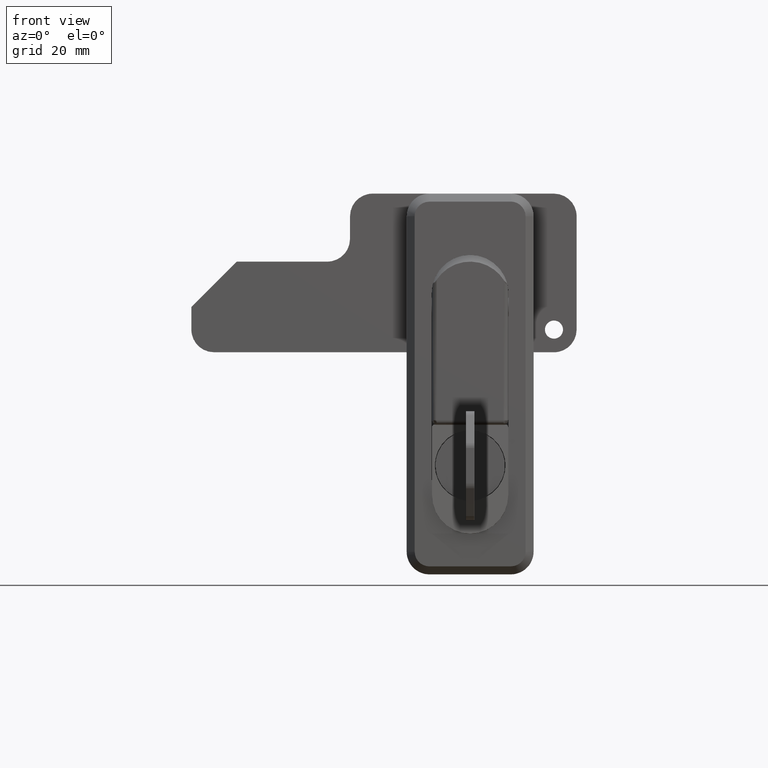
[diagram: clean part render]
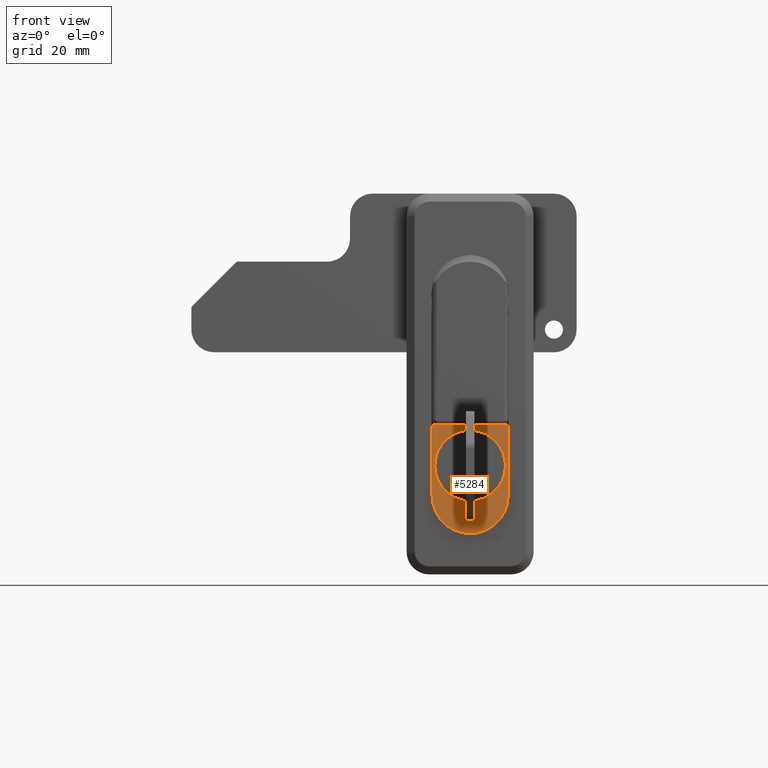
[diagram: same view with one face highlighted and labeled with its STEP entity id]
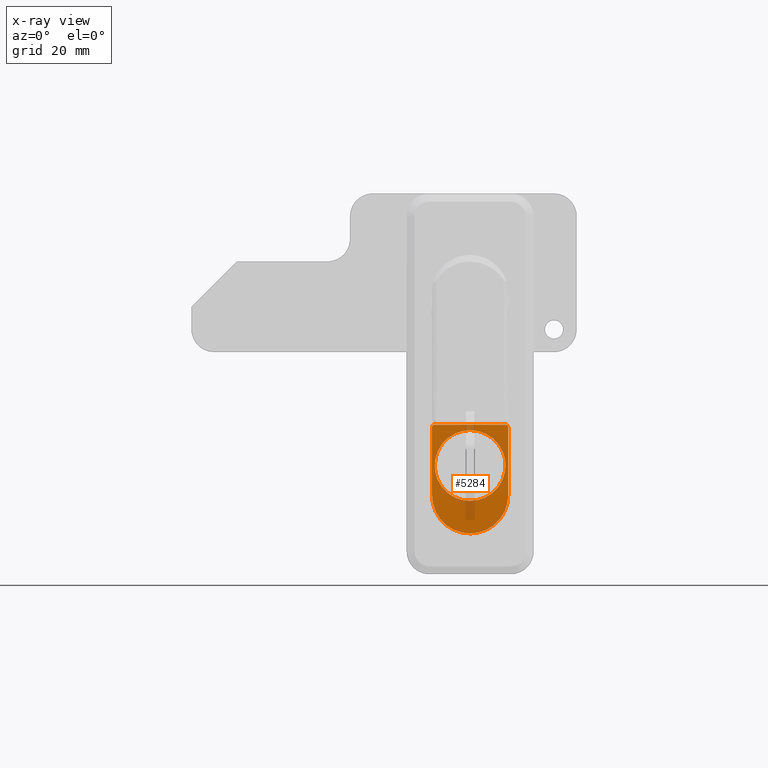
[diagram: x-ray of the same camera — body ghosted, the highlighted face saturated]
A machine part, front view. The second image highlights one B-rep face of the part: STEP entity #5284.
The next image is the same camera in x-ray: the body ghosted, the highlighted face saturated — about 6% of this face is hidden behind the body in this view.
In plain terms, the highlighted face is a freeform B-spline surface patch.
Its self-contained STEP definition (entity closure, byte-faithful):
#4175=CARTESIAN_POINT('',(-15.124999999953660,9.551930E-016,-60.200000000013922));
#4176=VERTEX_POINT('',#4175);
#4177=CARTESIAN_POINT('',(-15.916231229462220,-7.797327134808345,-67.795819803174311));
#4178=VERTEX_POINT('',#4177);
#4179=CARTESIAN_POINT('',(-15.124999999953660,9.551930E-016,-60.200000000013922));
#4180=CARTESIAN_POINT('',(-15.124999999953657,-7.598423593114710,-60.200000000013915));
#4181=CARTESIAN_POINT('',(-15.916231229462220,-7.797327134808345,-67.795819803174311));
#4189=(BOUNDED_CURVE()B_SPLINE_CURVE(2,(#4179,#4180,#4181),.UNSPECIFIED.,.F.,.U.)B_SPLINE_CURVE_WITH_KNOTS((3,3),(0.500000000000000,0.745396693339284),.UNSPECIFIED.)CURVE()GEOMETRIC_REPRESENTATION_ITEM()RATIONAL_B_SPLINE_CURVE((1.0,0.712499890406718,0.989412390644421))REPRESENTATION_ITEM(''));
#4190=EDGE_CURVE('',#4176,#4178,#4189,.T.);
#4192=CARTESIAN_POINT('',(-15.958768770476780,7.797327134808345,-68.204180196853500));
#4193=VERTEX_POINT('',#4192);
#4194=CARTESIAN_POINT('',(-15.958768770476784,7.797327134808345,-68.204180196853500));
#4195=CARTESIAN_POINT('',(-15.948136207605112,7.799999999999999,-68.102107593313818));
#4196=CARTESIAN_POINT('',(-15.937499999969500,7.800000000000000,-68.000000000013912));
#4197=CARTESIAN_POINT('',(-15.124999999953667,7.800000000000001,-60.200000000013915));
#4198=CARTESIAN_POINT('',(-15.124999999953660,9.551930E-016,-60.200000000013922));
#4206=(BOUNDED_CURVE()B_SPLINE_CURVE(2,(#4194,#4195,#4196,#4197,#4198),.UNSPECIFIED.,.F.,.U.)B_SPLINE_CURVE_WITH_KNOTS((3,2,3),(0.245396693339283,0.250000000000000,0.500000000000000),.UNSPECIFIED.)CURVE()GEOMETRIC_REPRESENTATION_ITEM()RATIONAL_B_SPLINE_CURVE((0.989412390644419,0.994606890779829,1.0,0.707106781186548,1.0))REPRESENTATION_ITEM(''));
#4207=EDGE_CURVE('',#4193,#4176,#4206,.T.);
#4274=CARTESIAN_POINT('',(-16.749999999985342,0.0,-75.800000000013910));
#4275=VERTEX_POINT('',#4274);
#4276=CARTESIAN_POINT('',(-15.916231229462216,-7.797327134808345,-67.795819803174311));
#4277=CARTESIAN_POINT('',(-15.926863792333883,-7.799999999999999,-67.897892406714007));
#4278=CARTESIAN_POINT('',(-15.937499999969500,-7.800000000000000,-68.000000000013912));
#4279=CARTESIAN_POINT('',(-16.749999999985331,-7.800000000000001,-75.800000000013910));
#4280=CARTESIAN_POINT('',(-16.749999999985342,0.0,-75.800000000013910));
#4288=(BOUNDED_CURVE()B_SPLINE_CURVE(2,(#4276,#4277,#4278,#4279,#4280),.UNSPECIFIED.,.F.,.U.)B_SPLINE_CURVE_WITH_KNOTS((3,2,3),(0.745396693339283,0.750000000000000,1.0),.UNSPECIFIED.)CURVE()GEOMETRIC_REPRESENTATION_ITEM()RATIONAL_B_SPLINE_CURVE((0.989412390644419,0.994606890779829,1.0,0.707106781186548,1.0))REPRESENTATION_ITEM(''));
#4289=EDGE_CURVE('',#4178,#4275,#4288,.T.);
#4323=CARTESIAN_POINT('',(-16.749999999985342,0.0,-75.800000000013910));
#4324=CARTESIAN_POINT('',(-16.749999999985334,7.598423593114684,-75.800000000013910));
#4325=CARTESIAN_POINT('',(-15.958768770476780,7.797327134808345,-68.204180196853500));
#4333=(BOUNDED_CURVE()B_SPLINE_CURVE(2,(#4323,#4324,#4325),.UNSPECIFIED.,.F.,.U.)B_SPLINE_CURVE_WITH_KNOTS((3,3),(0.0,0.245396693339283),.UNSPECIFIED.)CURVE()GEOMETRIC_REPRESENTATION_ITEM()RATIONAL_B_SPLINE_CURVE((1.0,0.712499890406719,0.989412390644419))REPRESENTATION_ITEM(''));
#4334=EDGE_CURVE('',#4275,#4193,#4333,.T.);
#5201=CARTESIAN_POINT('',(-14.875125004794320,-9.239159592004182,-57.801200046530553));
#5202=CARTESIAN_POINT('',(-17.624875062212180,-9.239159592004182,-84.198800597227404));
#5203=CARTESIAN_POINT('',(-14.875125004794320,9.239159141393067,-57.801200046530553));
#5204=CARTESIAN_POINT('',(-17.624875062212180,9.239159141393067,-84.198800597227404));
#5205=B_SPLINE_SURFACE_WITH_KNOTS('',1,1,((#5201,#5203),(#5202,#5204)),.UNSPECIFIED.,.F.,.F.,.U.,(2,2),(2,2),(0.0,26.540430294409699),(0.0,18.478318733397249),.UNSPECIFIED.);
#5206=CARTESIAN_POINT('',(-16.624999999983000,8.400000000000000,-74.600000000014006));
#5207=VERTEX_POINT('',#5206);
#5208=CARTESIAN_POINT('',(-16.624999999983000,-8.400000000000000,-74.600000000014006));
#5209=VERTEX_POINT('',#5208);
#5210=CARTESIAN_POINT('',(-16.624999999983000,8.400000000000000,-74.600000000014006));
#5211=CARTESIAN_POINT('',(-17.500000000000060,8.400000000000000,-83.000000000014026));
#5212=CARTESIAN_POINT('',(-17.500000000000060,2.057339E-015,-83.000000000014012));
#5213=CARTESIAN_POINT('',(-17.500000000000060,-8.400000000000000,-83.000000000014026));
#5214=CARTESIAN_POINT('',(-16.624999999983000,-8.400000000000000,-74.600000000014006));
#5222=(BOUNDED_CURVE()B_SPLINE_CURVE(2,(#5210,#5211,#5212,#5213,#5214),.UNSPECIFIED.,.F.,.U.)B_SPLINE_CURVE_WITH_KNOTS((3,2,3),(0.0,0.500000000000000,1.0),.UNSPECIFIED.)CURVE()GEOMETRIC_REPRESENTATION_ITEM()RATIONAL_B_SPLINE_CURVE((1.0,0.707106781186548,1.0,0.707106781186548,1.0))REPRESENTATION_ITEM(''));
#5223=EDGE_CURVE('',#5207,#5209,#5222,.T.);
#5224=ORIENTED_EDGE('',*,*,#5223,.T.);
#5225=CARTESIAN_POINT('',(-15.052083333285500,-8.400000000000000,-59.500000000013898));
#5226=VERTEX_POINT('',#5225);
#5227=CARTESIAN_POINT('',(-15.052083333285500,-8.400000000000000,-59.500000000013898));
#5228=CARTESIAN_POINT('',(-16.624999999983000,-8.400000000000000,-74.600000000014006));
#5229=QUASI_UNIFORM_CURVE('',1,(#5227,#5228),.UNSPECIFIED.,.F.,.U.);
#5230=EDGE_CURVE('',#5226,#5209,#5229,.T.);
#5231=ORIENTED_EDGE('',*,*,#5230,.F.);
#5232=CARTESIAN_POINT('',(-14.999999999951280,-7.900000000000000,-59.000000000013898));
#5233=VERTEX_POINT('',#5232);
#5234=CARTESIAN_POINT('',(-15.052083333285500,-8.400000000000000,-59.500000000013898));
#5235=CARTESIAN_POINT('',(-14.999999999951298,-8.399999964268273,-59.000000000013898));
#5236=CARTESIAN_POINT('',(-14.999999999951299,-7.900000000000000,-59.000000000013898));
#5244=(BOUNDED_CURVE()B_SPLINE_CURVE(2,(#5234,#5235,#5236),.UNSPECIFIED.,.F.,.U.)CURVE()GEOMETRIC_REPRESENTATION_ITEM()QUASI_UNIFORM_CURVE()RATIONAL_B_SPLINE_CURVE((1.0,0.707106806452695,1.0))REPRESENTATION_ITEM(''));
#5245=EDGE_CURVE('',#5226,#5233,#5244,.T.);
#5246=ORIENTED_EDGE('',*,*,#5245,.T.);
#5247=CARTESIAN_POINT('',(-14.999999999951280,7.900000000000000,-59.000000000013898));
#5248=VERTEX_POINT('',#5247);
#5249=CARTESIAN_POINT('',(-14.999999999951280,7.900000000000000,-59.000000000013898));
#5250=CARTESIAN_POINT('',(-14.999999999951280,-7.900000000000000,-59.000000000013898));
#5251=QUASI_UNIFORM_CURVE('',1,(#5249,#5250),.UNSPECIFIED.,.F.,.U.);
#5252=EDGE_CURVE('',#5248,#5233,#5251,.T.);
#5253=ORIENTED_EDGE('',*,*,#5252,.F.);
#5254=CARTESIAN_POINT('',(-15.052083333285649,8.400000000000000,-59.500000000013898));
#5255=VERTEX_POINT('',#5254);
#5256=CARTESIAN_POINT('',(-14.999999999951299,7.900000000000000,-59.000000000013898));
#5257=CARTESIAN_POINT('',(-14.999999999951305,8.107106791652130,-59.000000000013898));
#5258=CARTESIAN_POINT('',(-15.015254856414080,8.253553403226349,-59.146446622053702));
#5259=CARTESIAN_POINT('',(-15.030509712876858,8.400000014800567,-59.292893244093491));
#5260=CARTESIAN_POINT('',(-15.052083333285649,8.400000000000000,-59.500000000013898));
#5268=(BOUNDED_CURVE()B_SPLINE_CURVE(2,(#5256,#5257,#5258,#5259,#5260),.UNSPECIFIED.,.F.,.U.)B_SPLINE_CURVE_WITH_KNOTS((3,2,3),(0.0,0.500000000000000,1.0),.UNSPECIFIED.)CURVE()GEOMETRIC_REPRESENTATION_ITEM()RATIONAL_B_SPLINE_CURVE((1.0,0.923879525674317,1.0,0.923879525674317,1.0))REPRESENTATION_ITEM(''));
#5269=EDGE_CURVE('',#5248,#5255,#5268,.T.);
#5270=ORIENTED_EDGE('',*,*,#5269,.T.);
#5271=CARTESIAN_POINT('',(-16.624999999983000,8.400000000000000,-74.600000000014006));
#5272=CARTESIAN_POINT('',(-15.052083333285649,8.400000000000000,-59.500000000013898));
#5273=QUASI_UNIFORM_CURVE('',1,(#5271,#5272),.UNSPECIFIED.,.F.,.U.);
#5274=EDGE_CURVE('',#5207,#5255,#5273,.T.);
#5275=ORIENTED_EDGE('',*,*,#5274,.F.);
#5276=EDGE_LOOP('',(#5224,#5231,#5246,#5253,#5270,#5275));
#5277=FACE_OUTER_BOUND('',#5276,.T.);
#5278=ORIENTED_EDGE('',*,*,#4334,.T.);
#5279=ORIENTED_EDGE('',*,*,#4207,.T.);
#5280=ORIENTED_EDGE('',*,*,#4190,.T.);
#5281=ORIENTED_EDGE('',*,*,#4289,.T.);
#5282=EDGE_LOOP('',(#5278,#5279,#5280,#5281));
#5283=FACE_BOUND('',#5282,.T.);
#5284=ADVANCED_FACE('',(#5277,#5283),#5205,.F.);